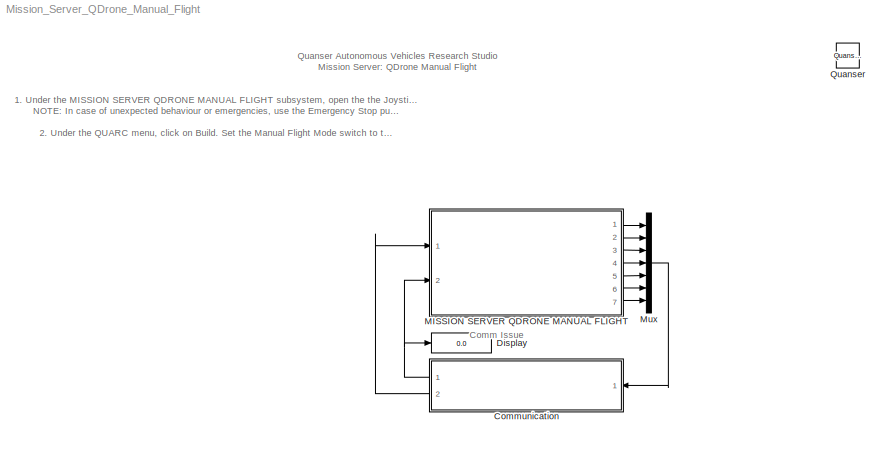
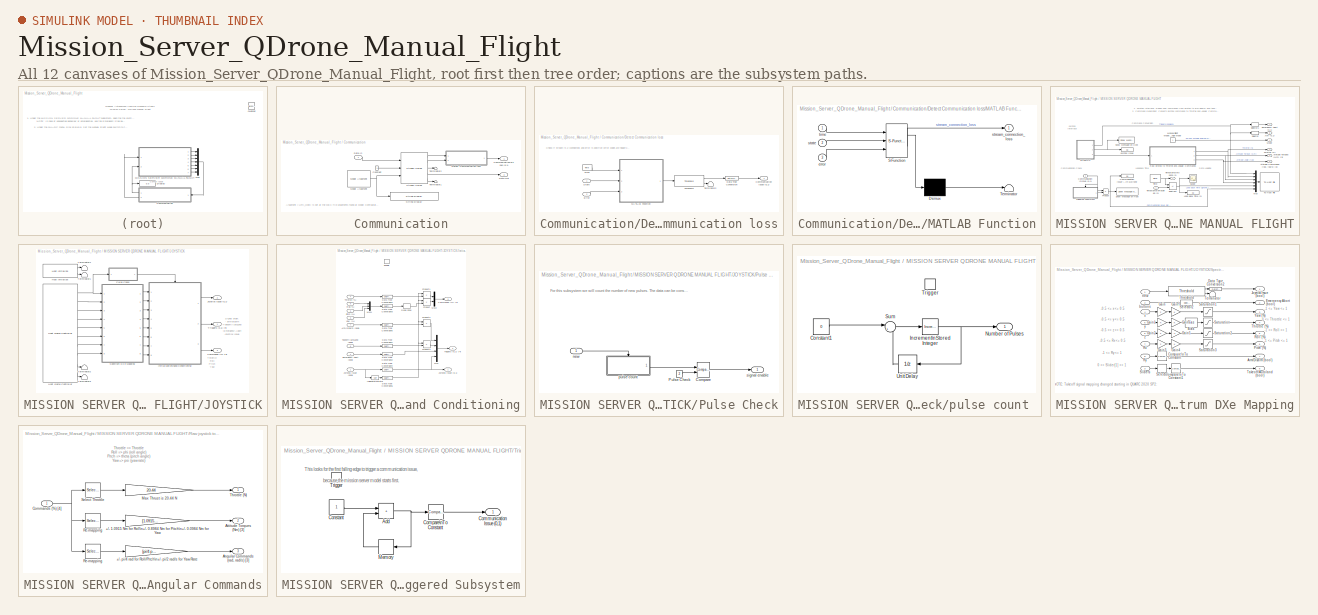
[diagram: thumbnail index - all 12 canvases of the model, root first then tree order]
MODEL Mission_Server_QDrone_Manual_Flight
KIND model
BLOCK [SubSystem] Communication
  Ports = [1, 2]
  RequestExecContextInheritance = off
  SID = 3974
BLOCK [Outport] Communication/Communication\nIssue (0,1)
  SID = 4276
  VectorParamsAs1DForOutWhenUnconnected = off
BLOCK [Constant] Communication/Constant
  SID = 3844
BLOCK [Inport] Communication/Data In
  SID = 3975
BLOCK [Outport] Communication/Data Out
  Port = 2
  SID = 3978
  VectorParamsAs1DForOutWhenUnconnected = off
BLOCK [SubSystem] Communication/Detect Communication loss
  Ports = [2, 1]
  RequestExecContextInheritance = off
  SID = 3979
BLOCK [Outport] Communication/Detect Communication loss/Communication Issue (0,1)
  SID = 3987
  VectorParamsAs1DForOutWhenUnconnected = off
BLOCK [DataTypeConversion] Communication/Detect Communication loss/Data Type Conversion
  RndMeth = Floor
  SID = 3982
  SaturateOnIntegerOverflow = off
BLOCK [Inport] Communication/Detect Communication loss/Error
  NameLocation = top
  Port = 2
  SID = 3981
BLOCK [SubSystem] Communication/Detect Communication loss/MATLAB Function
  ErrorFcn = Stateflow.Translate.translate
  PermitHierarchicalResolution = ExplicitOnly
  Ports = [3, 1]
  RequestExecContextInheritance = off
  SFBlockType = MATLAB Function
  SID = 3983
  TreatAsAtomicUnit = on
BLOCK [Demux] Communication/Detect Communication loss/MATLAB Function/ Demux 
  Outputs = 1
  Ports = [1, 1]
  SID = 3983::62
BLOCK [S-Function] Communication/Detect Communication loss/MATLAB Function/ SFunction 
  EnableBusSupport = off
  FunctionName = sf_sfun
  PortCounts = [3 2]
  Ports = [3, 2]
  SFcnIsStateOwnerBlock = off
  SFunctionDeploymentMode = off
  SID = 3983::61
  Tag = Stateflow S-Function 3
BLOCK [Terminator] Communication/Detect Communication loss/MATLAB Function/ Terminator 
  SID = 3983::63
BLOCK [Inport] Communication/Detect Communication loss/MATLAB Function/error
  Port = 3
  SID = 3983::23
BLOCK [Inport] Communication/Detect Communication loss/MATLAB Function/state
  Port = 2
  SID = 3983::22
BLOCK [Outport] Communication/Detect Communication loss/MATLAB Function/stream_connection_loss
  SID = 3983::5
  VectorParamsAs1DForOutWhenUnconnected = off
BLOCK [Inport] Communication/Detect Communication loss/MATLAB Function/time
  SID = 3983::1
BLOCK [Inport] Communication/Detect Communication loss/State
  NameLocation = top
  SID = 3980
BLOCK [Terminator] Communication/Detect Communication loss/Terminator2
  SID = 3984
BLOCK [Reference] Communication/Detect Communication loss/Threshold  REF=quarc_library/Discontinuities/Threshold
  Ports = [1, 2]
  SID = 3985
  SourceBlock = quarc_library/Discontinuities/Threshold
  SourceProductName = QUARC Targets
  SourceType = Threshold
  duration = 0.1
  operator = >=
  param_src = Specify via dialog
  threshold = 0.5
BLOCK [Reference] Communication/Detect Communication loss/Time  REF=quarc_library/Sources/Time/Time
  MultiThreadCoSim = auto
  NameLocation = top
  Ports = [0, 1]
  SID = 3986
  SourceBlock = quarc_library/Sources/Time/Time
  SourceProductName = QUARC Targets
  SourceType = Time
  sample_time = qc_get_step_size
  time_source = Wall clock
BLOCK [Reference] Communication/Model Argument  REF=quarc_library/Sources/Signals/Model Argument
  AttributesFormatString = (-%<argument_name>)
  MultiThreadCoSim = auto
  Ports = [0, 1]
  SID = 3845
  SourceBlock = quarc_library/Sources/Signals/Model Argument
  SourceProductName = QUARC Targets
  SourceType = Model Argument
  argument_name = URI_Host
  data_type = char
  data_type_mode = Specify via dialog
  default_string = tcpip://localhost:18001
  default_value = 0
  has_value = on
  max_length = 80
  variable_size = off
BLOCK [Reference] Communication/Stream Server  REF=quarc_library/Communications/Basic/Stream Server
  MultiThreadCoSim = auto
  Ports = [3, 5]
  SID = 3861
  SourceBlock = quarc_library/Communications/Basic/Stream Server
  SourceProductName = QUARC Targets
  SourceType = Stream Server
  active = off
  apply_uri_to_all_configs = off
  byte_order = little endian (Intel - LSB first)
  data_type = Inherited via back propagation
  default_value = zeros(1,2)
  implementation = Use blocking I/O in a separate thread
  max_dimensions = -1
  optimization = Minimum latency
  receive_buffer_size = 1460
  receive_dimensions = off
  receive_fifo_size = 1000
  receive_options = Receive most recent data
  receive_priority = 0
  sample_time = qc_get_step_size
  send_buffer_size = 1460
  send_dimensions = off
  send_fifo_size = 1000
  send_options = Send most recent data
  send_priority = 0
  type_expr = BusObject
  uri = tcpip://localhost:18877
  uri_source = External input port
BLOCK [Reference] Communication/String Display   REF=quarc_library/Strings/String Display
  MultiThreadCoSim = auto
  Ports = [1]
  SID = 3862
  SourceBlock = quarc_library/Strings/String Display
  SourceProductName = QUARC Targets
  SourceType = String Display
  alignment = center
  display_mode = Single line
  sample_time = -1
  use_new = off
BLOCK [Terminator] Communication/Terminator1
  SID = 3863
BLOCK [Terminator] Communication/Terminator2
  SID = 3864
BLOCK [Display] Display
  Decimation = 1
  Ports = [1]
  SID = 4419
BLOCK [SubSystem] MISSION SERVER QDRONE MANUAL FLIGHT
  Ports = [2, 7]
  RequestExecContextInheritance = off
  SID = 4279
BLOCK [Outport] MISSION SERVER QDRONE MANUAL FLIGHT/Arm (0,1)
  NameLocation = top
  Port = 6
  SID = 4405
  VectorParamsAs1DForOutWhenUnconnected = off
BLOCK [Outport] MISSION SERVER QDRONE MANUAL FLIGHT/Attitude Commands (rad, rad//s) [3]
  NameLocation = top
  Port = 5
  SID = 4404
  VectorParamsAs1DForOutWhenUnconnected = off
BLOCK [Outport] MISSION SERVER QDRONE MANUAL FLIGHT/Attitude Torques (Nm) [3]
  NameLocation = top
  Port = 4
  SID = 4440
  VectorParamsAs1DForOutWhenUnconnected = off
BLOCK [Display] MISSION SERVER QDRONE MANUAL FLIGHT/Communication Issue \nwith QDrone
  Decimation = 1
  Ports = [1]
  SID = 4282
BLOCK [Inport] MISSION SERVER QDRONE MANUAL FLIGHT/Communication \nIssue (0,1)
  Port = 2
  SID = 4281
BLOCK [Outport] MISSION SERVER QDRONE MANUAL FLIGHT/Emergency Abort (0,1)
  NameLocation = top
  Port = 2
  SID = 4402
  VectorParamsAs1DForOutWhenUnconnected = off
BLOCK [SubSystem] MISSION SERVER QDRONE MANUAL FLIGHT/JOYSTICK
  Ports = [0, 3]
  RequestExecContextInheritance = off
  SID = 4650
BLOCK [Outport] MISSION SERVER QDRONE MANUAL FLIGHT/JOYSTICK/Commands (%) [4]
  Port = 3
  SID = 4748
  VectorParamsAs1DForOutWhenUnconnected = off
BLOCK [Reference] MISSION SERVER QDRONE MANUAL FLIGHT/JOYSTICK/Host Game Controller  REF=quarc_library/Devices/Peripherals/Host/Host Game Controller
  MultiThreadCoSim = auto
  Ports = [0, 10]
  SID = 4651
  SourceBlock = quarc_library/Devices/Peripherals/Host/Host Game Controller
  SourceProductName = QUARC Targets
  SourceType = Host Game Controller
  auto_center = off
  buffer_size = 20
  controller = 1
  deadzone = []
  debug_mode = off
  enabled = on
  object_name = Host-1
  sample_time = qc_get_step_size
  saturation = []
BLOCK [Reference] MISSION SERVER QDRONE MANUAL FLIGHT/JOYSTICK/Host Initialize  REF=quarc_library/Devices/Peripherals/Host/Host Initialize
  MultiThreadCoSim = auto
  Ports = [0, 2]
  SID = 4652
  SourceBlock = quarc_library/Devices/Peripherals/Host/Host Initialize
  SourceProductName = QUARC Targets
  SourceType = Host Initialize
  active = on
  apply_uri_to_all_configs = on
  object_name = Host-1
  receive_buffer_size = 1000
  run_client = on
  sample_time = qc_get_step_size
  send_buffer_size = 1000
  thread_priority = 0
  uri = tcpip://localhost:18001
  uri_source = Use external mode communications
  use_window = off
  window_position = []
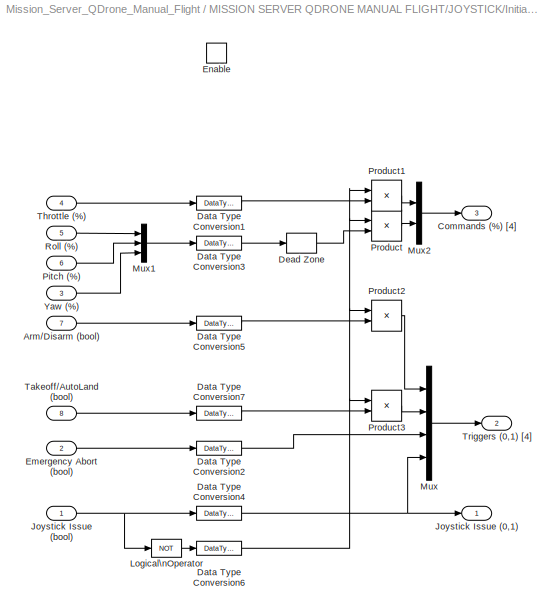
BLOCK [SubSystem] MISSION SERVER QDRONE MANUAL FLIGHT/JOYSTICK/Initialization\nand Conditioning
  Ports = [8, 3, 1]
  RequestExecContextInheritance = off
  SID = 4653
  TreatAsAtomicUnit = on
BLOCK [Inport] MISSION SERVER QDRONE MANUAL FLIGHT/JOYSTICK/Initialization\nand Conditioning/Arm//Disarm (bool)
  Port = 7
  SID = 4660
BLOCK [Outport] MISSION SERVER QDRONE MANUAL FLIGHT/JOYSTICK/Initialization\nand Conditioning/Commands (%) [4]
  InitialOutput = 0
  NameLocation = top
  Port = 3
  SID = 4681
  VectorParamsAs1DForOutWhenUnconnected = off
BLOCK [DataTypeConversion] MISSION SERVER QDRONE MANUAL FLIGHT/JOYSTICK/Initialization\nand Conditioning/Data Type Conversion1
  RndMeth = Floor
  SID = 4663
  SaturateOnIntegerOverflow = off
BLOCK [DataTypeConversion] MISSION SERVER QDRONE MANUAL FLIGHT/JOYSTICK/Initialization\nand Conditioning/Data Type Conversion2
  RndMeth = Floor
  SID = 4664
  SaturateOnIntegerOverflow = off
BLOCK [DataTypeConversion] MISSION SERVER QDRONE MANUAL FLIGHT/JOYSTICK/Initialization\nand Conditioning/Data Type Conversion3
  RndMeth = Floor
  SID = 4665
  SaturateOnIntegerOverflow = off
BLOCK [DataTypeConversion] MISSION SERVER QDRONE MANUAL FLIGHT/JOYSTICK/Initialization\nand Conditioning/Data Type Conversion4
  RndMeth = Floor
  SID = 4666
  SaturateOnIntegerOverflow = off
BLOCK [DataTypeConversion] MISSION SERVER QDRONE MANUAL FLIGHT/JOYSTICK/Initialization\nand Conditioning/Data Type Conversion5
  RndMeth = Floor
  SID = 4667
  SaturateOnIntegerOverflow = off
BLOCK [DataTypeConversion] MISSION SERVER QDRONE MANUAL FLIGHT/JOYSTICK/Initialization\nand Conditioning/Data Type Conversion6
  RndMeth = Floor
  SID = 4668
  SaturateOnIntegerOverflow = off
BLOCK [DataTypeConversion] MISSION SERVER QDRONE MANUAL FLIGHT/JOYSTICK/Initialization\nand Conditioning/Data Type Conversion7
  RndMeth = Floor
  SID = 4669
  SaturateOnIntegerOverflow = off
BLOCK [DeadZone] MISSION SERVER QDRONE MANUAL FLIGHT/JOYSTICK/Initialization\nand Conditioning/Dead Zone
  LowerValue = -0.01
  SID = 4670
  UpperValue = 0.01
BLOCK [Inport] MISSION SERVER QDRONE MANUAL FLIGHT/JOYSTICK/Initialization\nand Conditioning/Emergency Abort (bool)
  Port = 2
  SID = 4655
BLOCK [EnablePort] MISSION SERVER QDRONE MANUAL FLIGHT/JOYSTICK/Initialization\nand Conditioning/Enable
  Ports = []
  SID = 4662
  StatesWhenEnabling = reset
BLOCK [Outport] MISSION SERVER QDRONE MANUAL FLIGHT/JOYSTICK/Initialization\nand Conditioning/Joystick Issue (0,1)
  InitialOutput = 0
  NameLocation = top
  SID = 4679
  VectorParamsAs1DForOutWhenUnconnected = off
BLOCK [Inport] MISSION SERVER QDRONE MANUAL FLIGHT/JOYSTICK/Initialization\nand Conditioning/Joystick Issue (bool)
  SID = 4654
BLOCK [Logic] MISSION SERVER QDRONE MANUAL FLIGHT/JOYSTICK/Initialization\nand Conditioning/Logical\nOperator
  AllPortsSameDT = off
  Operator = NOT
  OutDataTypeStr = boolean
  Ports = [1, 1]
  SID = 4671
BLOCK [Mux] MISSION SERVER QDRONE MANUAL FLIGHT/JOYSTICK/Initialization\nand Conditioning/Mux
  DisplayOption = bar
  Ports = [4, 1]
  SID = 4672
BLOCK [Mux] MISSION SERVER QDRONE MANUAL FLIGHT/JOYSTICK/Initialization\nand Conditioning/Mux1
  DisplayOption = bar
  Inputs = 3
  Ports = [3, 1]
  SID = 4673
BLOCK [Mux] MISSION SERVER QDRONE MANUAL FLIGHT/JOYSTICK/Initialization\nand Conditioning/Mux2
  DisplayOption = bar
  Inputs = 2
  Ports = [2, 1]
  SID = 4674
BLOCK [Inport] MISSION SERVER QDRONE MANUAL FLIGHT/JOYSTICK/Initialization\nand Conditioning/Pitch (%)
  Port = 6
  SID = 4659
BLOCK [Product] MISSION SERVER QDRONE MANUAL FLIGHT/JOYSTICK/Initialization\nand Conditioning/Product
  Ports = [2, 1]
  SID = 4675
BLOCK [Product] MISSION SERVER QDRONE MANUAL FLIGHT/JOYSTICK/Initialization\nand Conditioning/Product1
  Ports = [2, 1]
  SID = 4676
BLOCK [Product] MISSION SERVER QDRONE MANUAL FLIGHT/JOYSTICK/Initialization\nand Conditioning/Product2
  Ports = [2, 1]
  SID = 4677
BLOCK [Product] MISSION SERVER QDRONE MANUAL FLIGHT/JOYSTICK/Initialization\nand Conditioning/Product3
  Ports = [2, 1]
  SID = 4678
BLOCK [Inport] MISSION SERVER QDRONE MANUAL FLIGHT/JOYSTICK/Initialization\nand Conditioning/Roll (%)
  Port = 5
  SID = 4658
BLOCK [Inport] MISSION SERVER QDRONE MANUAL FLIGHT/JOYSTICK/Initialization\nand Conditioning/Takeoff//AutoLand (bool)
  Port = 8
  SID = 4661
BLOCK [Inport] MISSION SERVER QDRONE MANUAL FLIGHT/JOYSTICK/Initialization\nand Conditioning/Throttle (%)
  Port = 4
  SID = 4657
BLOCK [Outport] MISSION SERVER QDRONE MANUAL FLIGHT/JOYSTICK/Initialization\nand Conditioning/Triggers (0,1) [4]
  InitialOutput = 0
  NameLocation = top
  Port = 2
  SID = 4680
  VectorParamsAs1DForOutWhenUnconnected = off
BLOCK [Inport] MISSION SERVER QDRONE MANUAL FLIGHT/JOYSTICK/Initialization\nand Conditioning/Yaw (%)
  Port = 3
  SID = 4656
BLOCK [Outport] MISSION SERVER QDRONE MANUAL FLIGHT/JOYSTICK/Joystick Issue (0,1)
  Port = 2
  SID = 4747
  VectorParamsAs1DForOutWhenUnconnected = off
BLOCK [SubSystem] MISSION SERVER QDRONE MANUAL FLIGHT/JOYSTICK/Pulse Check
  Ports = [1, 1]
  RequestExecContextInheritance = off
  SID = 4682
  TreatAsAtomicUnit = on
BLOCK [Reference] MISSION SERVER QDRONE MANUAL FLIGHT/JOYSTICK/Pulse Check/Compare  REF=quarc_library/Logic Operations/Compare
  MultiThreadCoSim = auto
  Ports = [2, 1]
  SID = 4684
  SourceBlock = quarc_library/Logic Operations/Compare
  SourceProductName = QUARC Targets
  SourceType = Compare
  operator = >
  output_data_type = boolean
BLOCK [Constant] MISSION SERVER QDRONE MANUAL FLIGHT/JOYSTICK/Pulse Check/Pulse Check
  SID = 4685
  Value = 2
BLOCK [Inport] MISSION SERVER QDRONE MANUAL FLIGHT/JOYSTICK/Pulse Check/new
  SID = 4683
BLOCK [SubSystem] MISSION SERVER QDRONE MANUAL FLIGHT/JOYSTICK/Pulse Check/pulse count 
  Ports = [0, 1, 0, 1]
  RequestExecContextInheritance = off
  SID = 4686
  TreatAsAtomicUnit = on
BLOCK [Constant] MISSION SERVER QDRONE MANUAL FLIGHT/JOYSTICK/Pulse Check/pulse count /Constant1
  SID = 4688
  Value = 0
BLOCK [Reference] MISSION SERVER QDRONE MANUAL FLIGHT/JOYSTICK/Pulse Check/pulse count /Increment\nStored Integer  REF=simulink/Additional Math\n& Discrete/Additional Math:\nIncrement - Decrement/Increment\nStored Integer
  Ports = [1, 1]
  SID = 4689
  SourceBlock = simulink/Additional Math\n& Discrete/Additional Math:\nIncrement - Decrement/Increment\nStored Integer
  SourceProductBaseCode = SL
  SourceType = Stored Integer Value Increment
BLOCK [Outport] MISSION SERVER QDRONE MANUAL FLIGHT/JOYSTICK/Pulse Check/pulse count /Number of Pulses
  SID = 4692
  VectorParamsAs1DForOutWhenUnconnected = off
BLOCK [Sum] MISSION SERVER QDRONE MANUAL FLIGHT/JOYSTICK/Pulse Check/pulse count /Sum
  Inputs = |++
  Ports = [2, 1]
  SID = 4690
BLOCK [TriggerPort] MISSION SERVER QDRONE MANUAL FLIGHT/JOYSTICK/Pulse Check/pulse count /Trigger
  Ports = []
  SID = 4687
  StatesWhenEnabling = held
  VariantControl = Variant
BLOCK [UnitDelay] MISSION SERVER QDRONE MANUAL FLIGHT/JOYSTICK/Pulse Check/pulse count /Unit Delay
  HasFrameUpgradeWarning = on
  NameLocation = top
  SID = 4691
  SampleTime = -1
BLOCK [Outport] MISSION SERVER QDRONE MANUAL FLIGHT/JOYSTICK/Pulse Check/signal enable
  InitialOutput = 0
  SID = 4693
  VectorParamsAs1DForOutWhenUnconnected = off
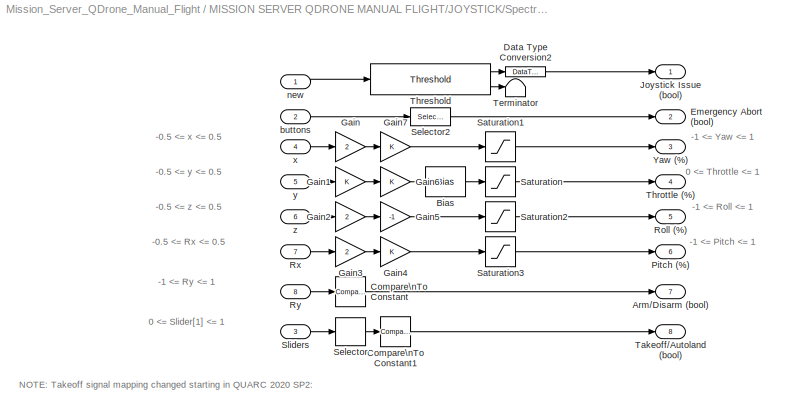
BLOCK [SubSystem] MISSION SERVER QDRONE MANUAL FLIGHT/JOYSTICK/Spectrum DXe Mapping
  Ports = [8, 8]
  RequestExecContextInheritance = off
  SID = 4752
BLOCK [Outport] MISSION SERVER QDRONE MANUAL FLIGHT/JOYSTICK/Spectrum DXe Mapping/Arm//Disarm (bool) 
  Port = 7
  SID = 4787
  VectorParamsAs1DForOutWhenUnconnected = off
BLOCK [Bias] MISSION SERVER QDRONE MANUAL FLIGHT/JOYSTICK/Spectrum DXe Mapping/Bias
  Bias = 0.5
  SID = 4761
  SaturateOnIntegerOverflow = off
BLOCK [Reference] MISSION SERVER QDRONE MANUAL FLIGHT/JOYSTICK/Spectrum DXe Mapping/Compare\nTo Constant  REF=simulink/Logic and Bit\nOperations/Compare\nTo Constant
  OutDataTypeStr = boolean
  Ports = [1, 1]
  SID = 4762
  SourceBlock = simulink/Logic and Bit\nOperations/Compare\nTo Constant
  SourceProductBaseCode = SL
  SourceType = Compare To Constant
  ZeroCross = on
  const = 0
  relop = <=
BLOCK [Reference] MISSION SERVER QDRONE MANUAL FLIGHT/JOYSTICK/Spectrum DXe Mapping/Compare\nTo Constant1  REF=simulink/Logic and Bit\nOperations/Compare\nTo Constant
  OutDataTypeStr = boolean
  Ports = [1, 1]
  SID = 4763
  SourceBlock = simulink/Logic and Bit\nOperations/Compare\nTo Constant
  SourceProductBaseCode = SL
  SourceType = Compare To Constant
  ZeroCross = on
  const = 0.5
  relop = <=
BLOCK [DataTypeConversion] MISSION SERVER QDRONE MANUAL FLIGHT/JOYSTICK/Spectrum DXe Mapping/Data Type Conversion2
  RndMeth = Floor
  SID = 4764
  SaturateOnIntegerOverflow = off
BLOCK [Outport] MISSION SERVER QDRONE MANUAL FLIGHT/JOYSTICK/Spectrum DXe Mapping/Emergency Abort (bool)
  Port = 2
  SID = 4782
  VectorParamsAs1DForOutWhenUnconnected = off
BLOCK [Gain] MISSION SERVER QDRONE MANUAL FLIGHT/JOYSTICK/Spectrum DXe Mapping/Gain
  Gain = 2
  SID = 4765
BLOCK [Gain] MISSION SERVER QDRONE MANUAL FLIGHT/JOYSTICK/Spectrum DXe Mapping/Gain1
  SID = 4766
BLOCK [Gain] MISSION SERVER QDRONE MANUAL FLIGHT/JOYSTICK/Spectrum DXe Mapping/Gain2
  Gain = 2
  SID = 4767
BLOCK [Gain] MISSION SERVER QDRONE MANUAL FLIGHT/JOYSTICK/Spectrum DXe Mapping/Gain3
  Gain = 2
  SID = 4768
BLOCK [Gain] MISSION SERVER QDRONE MANUAL FLIGHT/JOYSTICK/Spectrum DXe Mapping/Gain4
  SID = 4769
BLOCK [Gain] MISSION SERVER QDRONE MANUAL FLIGHT/JOYSTICK/Spectrum DXe Mapping/Gain5
  Gain = -1
  SID = 4770
BLOCK [Gain] MISSION SERVER QDRONE MANUAL FLIGHT/JOYSTICK/Spectrum DXe Mapping/Gain6
  SID = 4771
BLOCK [Gain] MISSION SERVER QDRONE MANUAL FLIGHT/JOYSTICK/Spectrum DXe Mapping/Gain7
  SID = 4772
BLOCK [Outport] MISSION SERVER QDRONE MANUAL FLIGHT/JOYSTICK/Spectrum DXe Mapping/Joystick Issue (bool)
  SID = 4781
  VectorParamsAs1DForOutWhenUnconnected = off
BLOCK [Outport] MISSION SERVER QDRONE MANUAL FLIGHT/JOYSTICK/Spectrum DXe Mapping/Pitch (%)
  Port = 6
  SID = 4786
  VectorParamsAs1DForOutWhenUnconnected = off
BLOCK [Outport] MISSION SERVER QDRONE MANUAL FLIGHT/JOYSTICK/Spectrum DXe Mapping/Roll (%)
  Port = 5
  SID = 4785
  VectorParamsAs1DForOutWhenUnconnected = off
BLOCK [Inport] MISSION SERVER QDRONE MANUAL FLIGHT/JOYSTICK/Spectrum DXe Mapping/Rx
  Port = 7
  SID = 4759
BLOCK [Inport] MISSION SERVER QDRONE MANUAL FLIGHT/JOYSTICK/Spectrum DXe Mapping/Ry
  Port = 8
  SID = 4760
BLOCK [Saturate] MISSION SERVER QDRONE MANUAL FLIGHT/JOYSTICK/Spectrum DXe Mapping/Saturation
  LowerLimit = 0
  SID = 4773
  UpperLimit = 1
BLOCK [Saturate] MISSION SERVER QDRONE MANUAL FLIGHT/JOYSTICK/Spectrum DXe Mapping/Saturation1
  LowerLimit = -1
  SID = 4774
  UpperLimit = 1
BLOCK [Saturate] MISSION SERVER QDRONE MANUAL FLIGHT/JOYSTICK/Spectrum DXe Mapping/Saturation2
  LowerLimit = -1
  SID = 4775
  UpperLimit = 1
BLOCK [Saturate] MISSION SERVER QDRONE MANUAL FLIGHT/JOYSTICK/Spectrum DXe Mapping/Saturation3
  LowerLimit = -1
  SID = 4776
  UpperLimit = 1
BLOCK [Selector] MISSION SERVER QDRONE MANUAL FLIGHT/JOYSTICK/Spectrum DXe Mapping/Selector
  IndexOptions = Index vector (dialog)
  Indices = [2]
  InputPortWidth = 2
  OutputSizes = 1
  Ports = [1, 1]
  SID = 4777
BLOCK [Selector] MISSION SERVER QDRONE MANUAL FLIGHT/JOYSTICK/Spectrum DXe Mapping/Selector2
  IndexOptions = Index vector (dialog)
  Indices = [1]
  InputPortWidth = 32
  NameLocation = top
  OutputSizes = 1
  Ports = [1, 1]
  SID = 4778
BLOCK [Inport] MISSION SERVER QDRONE MANUAL FLIGHT/JOYSTICK/Spectrum DXe Mapping/Sliders
  Port = 3
  SID = 4755
BLOCK [Outport] MISSION SERVER QDRONE MANUAL FLIGHT/JOYSTICK/Spectrum DXe Mapping/Takeoff//Autoland (bool)
  Port = 8
  SID = 4788
  VectorParamsAs1DForOutWhenUnconnected = off
BLOCK [Terminator] MISSION SERVER QDRONE MANUAL FLIGHT/JOYSTICK/Spectrum DXe Mapping/Terminator
  SID = 4779
BLOCK [Reference] MISSION SERVER QDRONE MANUAL FLIGHT/JOYSTICK/Spectrum DXe Mapping/Threshold  REF=quarc_library/Discontinuities/Threshold
  Ports = [1, 2]
  SID = 4780
  SourceBlock = quarc_library/Discontinuities/Threshold
  SourceProductName = QUARC Targets
  SourceType = Threshold
  duration = 1
  operator = ==
  param_src = Specify via dialog
  threshold = 0
BLOCK [Outport] MISSION SERVER QDRONE MANUAL FLIGHT/JOYSTICK/Spectrum DXe Mapping/Throttle (%)
  Port = 4
  SID = 4784
  VectorParamsAs1DForOutWhenUnconnected = off
BLOCK [Outport] MISSION SERVER QDRONE MANUAL FLIGHT/JOYSTICK/Spectrum DXe Mapping/Yaw (%)
  Port = 3
  SID = 4783
  VectorParamsAs1DForOutWhenUnconnected = off
BLOCK [Inport] MISSION SERVER QDRONE MANUAL FLIGHT/JOYSTICK/Spectrum DXe Mapping/buttons
  Port = 2
  SID = 4754
BLOCK [Inport] MISSION SERVER QDRONE MANUAL FLIGHT/JOYSTICK/Spectrum DXe Mapping/new
  SID = 4753
BLOCK [Inport] MISSION SERVER QDRONE MANUAL FLIGHT/JOYSTICK/Spectrum DXe Mapping/x
  Port = 4
  SID = 4756
BLOCK [Inport] MISSION SERVER QDRONE MANUAL FLIGHT/JOYSTICK/Spectrum DXe Mapping/y
  Port = 5
  SID = 4757
BLOCK [Inport] MISSION SERVER QDRONE MANUAL FLIGHT/JOYSTICK/Spectrum DXe Mapping/z
  Port = 6
  SID = 4758
BLOCK [Terminator] MISSION SERVER QDRONE MANUAL FLIGHT/JOYSTICK/Terminator1
  SID = 4742
BLOCK [Terminator] MISSION SERVER QDRONE MANUAL FLIGHT/JOYSTICK/Terminator2
  SID = 4743
BLOCK [Terminator] MISSION SERVER QDRONE MANUAL FLIGHT/JOYSTICK/Terminator3
  SID = 4744
BLOCK [Terminator] MISSION SERVER QDRONE MANUAL FLIGHT/JOYSTICK/Terminator4
  SID = 4745
BLOCK [Outport] MISSION SERVER QDRONE MANUAL FLIGHT/JOYSTICK/Triggers (0,1) [4]
  SID = 4746
  VectorParamsAs1DForOutWhenUnconnected = off
BLOCK [Display] MISSION SERVER QDRONE MANUAL FLIGHT/Joystick Issue
  Decimation = 1
  Ports = [1]
  SID = 4373
BLOCK [Display] MISSION SERVER QDRONE MANUAL FLIGHT/Loop Back Time (s)
  Decimation = 1
  Ports = [1]
  SID = 4374
BLOCK [Constant] MISSION SERVER QDRONE MANUAL FLIGHT/Manual Flight Mode\n1 - Torque Mode,   0 - Angle Mode
  NameLocation = top
  SID = 4436
BLOCK [Outport] MISSION SERVER QDRONE MANUAL FLIGHT/Mode
  NameLocation = top
  SID = 4441
  VectorParamsAs1DForOutWhenUnconnected = off
BLOCK [Mux] MISSION SERVER QDRONE MANUAL FLIGHT/Mux
  DisplayOption = bar
  Inputs = 6
  Ports = [6, 1]
  SID = 4375
BLOCK [Product] MISSION SERVER QDRONE MANUAL FLIGHT/Product
  Ports = [2, 1]
  SID = 4376
BLOCK [SubSystem] MISSION SERVER QDRONE MANUAL FLIGHT/Raw joystick to Throttle and Angular Commands
  NameLocation = top
  Ports = [1, 3]
  RequestExecContextInheritance = off
  SID = 4377
BLOCK [Selector] MISSION SERVER QDRONE MANUAL FLIGHT/Raw joystick to Throttle and Angular Commands/ Re-mapping 
  IndexOptions = Index vector (dialog)
  Indices = [2 3 4]
  InputPortWidth = 4
  OutputSizes = 1
  Ports = [1, 1]
  SID = 4438
BLOCK [Gain] MISSION SERVER QDRONE MANUAL FLIGHT/Raw joystick to Throttle and Angular Commands/+//- 1.0915 Nm for Roll\n+//- 0.8984 Nm for Pitch\n+//- 0.0984 Nm for Yaw
  Gain = [1.0915 0.8984 0.0984]
  SID = 4437
BLOCK [Gain] MISSION SERVER QDRONE MANUAL FLIGHT/Raw joystick to Throttle and Angular Commands/+//- pi//4 rad for Roll//Pitch\n+//- pi//2 rad//s for Yaw Rate
  Gain = [pi/4 pi/4 pi/2]
  SID = 4379
BLOCK [Outport] MISSION SERVER QDRONE MANUAL FLIGHT/Raw joystick to Throttle and Angular Commands/Angular Commands (rad, rad//s) [3]
  Port = 3
  SID = 4384
  VectorParamsAs1DForOutWhenUnconnected = off
BLOCK [Outport] MISSION SERVER QDRONE MANUAL FLIGHT/Raw joystick to Throttle and Angular Commands/Attitude Torques (Nm) [3]
  Port = 2
  SID = 4439
  VectorParamsAs1DForOutWhenUnconnected = off
BLOCK [Inport] MISSION SERVER QDRONE MANUAL FLIGHT/Raw joystick to Throttle and Angular Commands/Commands (%) [4]
  SID = 4378
BLOCK [Gain] MISSION SERVER QDRONE MANUAL FLIGHT/Raw joystick to Throttle and Angular Commands/Max Thrust is 20.44 N
  Gain = 20.44
  SID = 4380
BLOCK [Selector] MISSION SERVER QDRONE MANUAL FLIGHT/Raw joystick to Throttle and Angular Commands/Re-mapping
  IndexOptions = Index vector (dialog)
  Indices = [2 3 4]
  InputPortWidth = 4
  OutputSizes = 1
  Ports = [1, 1]
  SID = 4381
BLOCK [Selector] MISSION SERVER QDRONE MANUAL FLIGHT/Raw joystick to Throttle and Angular Commands/Select Throttle
  IndexOptions = Index vector (dialog)
  Indices = [1]
  InputPortWidth = 4
  OutputSizes = 1
  Ports = [1, 1]
  SID = 4382
BLOCK [Outport] MISSION SERVER QDRONE MANUAL FLIGHT/Raw joystick to Throttle and Angular Commands/Throttle (N)
  SID = 4383
  VectorParamsAs1DForOutWhenUnconnected = off
BLOCK [Scope] MISSION SERVER QDRONE MANUAL FLIGHT/Scope
  Floating = off
  NumInputPorts = 1
  Ports = [1]
  SID = 4386
  ScopeSpecificationString = Simulink.scopes.TimeScopeBlockCfg('CurrentConfiguration', extmgr.ConfigurationSet(extmgr.Configuration('Core','General UI',true),extmgr.Configuration('Core','Source UI',true),extmgr.Configuration('Sources','WiredSimulink',true),extmgr.Configuration('Visuals','Time Domain',true),extmgr.Configuration('Tools','Plot Navigation',true),extmgr.Configuration('Tools','Measurements',true)),'Version','2021a'...<+1ch>
BLOCK [Selector] MISSION SERVER QDRONE MANUAL FLIGHT/Selector
  IndexOptions = Index vector (dialog)
  Indices = [1]
  InputPortWidth = 4
  OutputSizes = 1
  Ports = [1, 1]
  SID = 4387
BLOCK [Selector] MISSION SERVER QDRONE MANUAL FLIGHT/Selector1
  IndexOptions = Index vector (dialog)
  Indices = [3]
  InputPortWidth = 4
  OutputSizes = 1
  Ports = [1, 1]
  SID = 4388
BLOCK [Reference] MISSION SERVER QDRONE MANUAL FLIGHT/Show Message on Host  REF=quarc_library/Sinks/Error Handling/Show Message on Host
  AttributesFormatString = \"%<message>\"
  MultiThreadCoSim = auto
  Ports = [1]
  SID = 4389
  SourceBlock = quarc_library/Sinks/Error Handling/Show Message on Host
  SourceProductName = QUARC Targets
  SourceType = Host Show Message
  message = Mission Server: Communication Issue with QDrone
  message_icon = Warning
  message_type = Fixed error message
BLOCK [Reference] MISSION SERVER QDRONE MANUAL FLIGHT/Show Message on Host   REF=quarc_library/Sinks/Error Handling/Show Message on Host
  AttributesFormatString = \"%<message>\"
  MultiThreadCoSim = auto
  NameLocation = top
  Ports = [1]
  SID = 4390
  SourceBlock = quarc_library/Sinks/Error Handling/Show Message on Host
  SourceProductName = QUARC Targets
  SourceType = Host Show Message
  message = Mission Server: Joystick Disconnected
  message_icon = Warning
  message_type = Fixed error message
BLOCK [Sum] MISSION SERVER QDRONE MANUAL FLIGHT/Subtract
  IconShape = rectangular
  Inputs = +-
  Ports = [2, 1]
  SID = 4391
BLOCK [Outport] MISSION SERVER QDRONE MANUAL FLIGHT/Throttle (N)
  NameLocation = top
  Port = 3
  SID = 4403
  VectorParamsAs1DForOutWhenUnconnected = off
BLOCK [Reference] MISSION SERVER QDRONE MANUAL FLIGHT/Time  REF=quarc_library/Sources/Time/Time
  MultiThreadCoSim = auto
  Ports = [0, 1]
  SID = 4392
  SourceBlock = quarc_library/Sources/Time/Time
  SourceProductName = QUARC Targets
  SourceType = Time
  sample_time = qc_get_step_size
  time_source = Wall clock
BLOCK [Inport] MISSION SERVER QDRONE MANUAL FLIGHT/Timestamp\nReceived (s)
  SID = 4280
BLOCK [Outport] MISSION SERVER QDRONE MANUAL FLIGHT/Timestamp\nto send (s)
  NameLocation = top
  Port = 7
  SID = 4406
  VectorParamsAs1DForOutWhenUnconnected = off
BLOCK [Reference] MISSION SERVER QDRONE MANUAL FLIGHT/To Host File  REF=quarc_library/Sinks/To Host/To Host File
  AttributesFormatString = %<final_file_name>
  MultiThreadCoSim = auto
  Ports = [1]
  SID = 4393
  SourceBlock = quarc_library/Sinks/To Host/To Host File
  SourceProductName = QUARC Targets
  SourceType = To Host File
  append = off
  bitrate = 2000000
  decimation = 1
  file_format = MAT-file v.5
  file_name = saved_data/%m/Mission_Server_%{char(datetime)}.mat
  final_file_name = saved_data/Mission_Server_QDrone_Manual_Flight/Mission_Server_2022-03-09 17-51-30.mat
  options = No header or footer
  sample_time = -1
  variable_name = mission_server_data
BLOCK [SubSystem] MISSION SERVER QDRONE MANUAL FLIGHT/Triggered Subsystem
  Ports = [0, 1, 0, 1]
  RequestExecContextInheritance = off
  SID = 4394
  TreatAsAtomicUnit = on
BLOCK [Sum] MISSION SERVER QDRONE MANUAL FLIGHT/Triggered Subsystem/Add
  IconShape = rectangular
  Ports = [2, 1]
  SID = 4396
BLOCK [Outport] MISSION SERVER QDRONE MANUAL FLIGHT/Triggered Subsystem/Communication Issue (0,1)
  InitialOutput = 0
  SID = 4400
  VectorParamsAs1DForOutWhenUnconnected = off
BLOCK [Reference] MISSION SERVER QDRONE MANUAL FLIGHT/Triggered Subsystem/Compare\nTo Constant  REF=simulink/Logic and Bit\nOperations/Compare\nTo Constant
  OutDataTypeStr = boolean
  Ports = [1, 1]
  SID = 4397
  SourceBlock = simulink/Logic and Bit\nOperations/Compare\nTo Constant
  SourceProductBaseCode = SL
  SourceType = Compare To Constant
  ZeroCross = on
  const = 1
  relop = >=
BLOCK [Constant] MISSION SERVER QDRONE MANUAL FLIGHT/Triggered Subsystem/Constant
  SID = 4398
BLOCK [Memory] MISSION SERVER QDRONE MANUAL FLIGHT/Triggered Subsystem/Memory
  InheritSampleTime = on
  SID = 4399
BLOCK [TriggerPort] MISSION SERVER QDRONE MANUAL FLIGHT/Triggered Subsystem/Trigger
  Ports = []
  SID = 4395
  StatesWhenEnabling = held
  TriggerType = falling
  VariantControl = Variant
BLOCK [Mux] Mux
  DisplayOption = bar
  Inputs = 7
  Ports = [7, 1]
  SID = 4016
BLOCK [Reference] Quanser  REF=quarc_library/Logos/Quanser
  Ports = []
  RTWMemSecDataConstants = Inherit from model
  RTWMemSecDataInternal = Inherit from model
  RTWMemSecDataParameters = Inherit from model
  RTWMemSecFuncExecute = Inherit from model
  RTWMemSecFuncInitTerm = Inherit from model
  SID = 3945
  SourceBlock = quarc_library/Logos/Quanser
  SourceProductName = QUARC Targets
  SourceType = Powered by Quanser
ANNOTATION (root): \n \n 1. Under the MISSION SERVER QDRONE MANUAL FLIGHT subsystem, open the the Joystick subsystem, and ensure that the Host Game Controller block's Controller Number parameter is set to SPEKTRUM RECEIVER NOTE : In case of unexpected behaviour or emergencies, use the Emergency Stop push button on the Spektrum Joystick to cut all power to the motors (this will result in the drone falling). \n 2. Und...<+719ch>
ANNOTATION (root): \n \n Quanser Autonomous Vehicles Research Studio Mission Server: QDrone Manual Flight
ANNOTATION (root): Comm Issue
ANNOTATION Communication: \n \n Argument (-URI_Host) is set at the MEX-file arguments found at Model Configuration Properties > Code Generation > Interface \n \n Format: \n tcpip://localhost:18001
ANNOTATION Communication/Detect Communication loss: Check if stream is 2 (connected) and error is positive (error codes are negative). Otherwise issue a communication error.
ANNOTATION MISSION SERVER QDRONE MANUAL FLIGHT: 1. Joystick Interface: Reads user commands from joystick to arm/disarm and takeoff/land the drone.\n2. Command Generation: Converts joystick commands to Throttle and Angular Commands
ANNOTATION MISSION SERVER QDRONE MANUAL FLIGHT: Command Conversion
ANNOTATION MISSION SERVER QDRONE MANUAL FLIGHT: Communication Check
ANNOTATION MISSION SERVER QDRONE MANUAL FLIGHT: Data Logging
ANNOTATION MISSION SERVER QDRONE MANUAL FLIGHT: Joystick \nInterface
ANNOTATION MISSION SERVER QDRONE MANUAL FLIGHT: Loopback Time
ANNOTATION MISSION SERVER QDRONE MANUAL FLIGHT/JOYSTICK: Signal order:\n- arm/disarm \n-Takeoff/AutoLand \n-Emergency Abort \n-Joystick Issue
ANNOTATION MISSION SERVER QDRONE MANUAL FLIGHT/JOYSTICK: Throttle\nRoll\nPitch \nYaw
ANNOTATION MISSION SERVER QDRONE MANUAL FLIGHT/JOYSTICK/Pulse Check: \n \n For this subsystem we will count the number of new pulses. The data can be considered enabled once the count of new signals has gone beyond 2. This will enable the Initializing and conditioning subsystem.
ANNOTATION MISSION SERVER QDRONE MANUAL FLIGHT/JOYSTICK/Spectrum DXe Mapping: -0.5 <= Rx <= 0.5
ANNOTATION MISSION SERVER QDRONE MANUAL FLIGHT/JOYSTICK/Spectrum DXe Mapping: -0.5 <= x <= 0.5
ANNOTATION MISSION SERVER QDRONE MANUAL FLIGHT/JOYSTICK/Spectrum DXe Mapping: -0.5 <= y <= 0.5
ANNOTATION MISSION SERVER QDRONE MANUAL FLIGHT/JOYSTICK/Spectrum DXe Mapping: -0.5 <= z <= 0.5
ANNOTATION MISSION SERVER QDRONE MANUAL FLIGHT/JOYSTICK/Spectrum DXe Mapping: -1 <= Pitch <= 1
ANNOTATION MISSION SERVER QDRONE MANUAL FLIGHT/JOYSTICK/Spectrum DXe Mapping: -1 <= Roll <= 1
ANNOTATION MISSION SERVER QDRONE MANUAL FLIGHT/JOYSTICK/Spectrum DXe Mapping: -1 <= Ry <= 1
ANNOTATION MISSION SERVER QDRONE MANUAL FLIGHT/JOYSTICK/Spectrum DXe Mapping: -1 <= Yaw <= 1
ANNOTATION MISSION SERVER QDRONE MANUAL FLIGHT/JOYSTICK/Spectrum DXe Mapping: 0 <= Slider[1] <= 1
ANNOTATION MISSION SERVER QDRONE MANUAL FLIGHT/JOYSTICK/Spectrum DXe Mapping: 0 <= Throttle <= 1
ANNOTATION MISSION SERVER QDRONE MANUAL FLIGHT/JOYSTICK/Spectrum DXe Mapping: \n \n NOTE: Takeoff signal mapping changed starting in QUARC 2020 SP2: \n \n - For QUARC 2020 SP1 and earlier: Takeoff signal mapped to Slider Channel 1 \n - For QUARC 2020 SP2 and later: Takeoff signal mapped to Slider Channel 2 \n \n Change the Selector channel according to QUARC version as needed! \n
ANNOTATION MISSION SERVER QDRONE MANUAL FLIGHT/Raw joystick to Throttle and Angular Commands: Throttle => Throttle\nRoll => phi (roll angle)\nPitch => theta (pitch angle)\nYaw => psi (yaw rate)
ANNOTATION MISSION SERVER QDRONE MANUAL FLIGHT/Triggered Subsystem: This looks for the first falling edge to trigger a communication issue, \nbecause the mission server model starts first.
LINE Communication/Constant:1 -> Communication/Stream Server:2
LINE Communication/Data In:1 -> Communication/Stream Server:1
LINE Communication/Detect Communication loss/Data Type Conversion:1 -> Communication/Detect Communication loss/Communication Issue (0,1):1
LINE Communication/Detect Communication loss/Error:1 -> Communication/Detect Communication loss/MATLAB Function:3
LINE Communication/Detect Communication loss/MATLAB Function/ Demux :1 -> Communication/Detect Communication loss/MATLAB Function/ Terminator :1
LINE Communication/Detect Communication loss/MATLAB Function/ SFunction :1 -> Communication/Detect Communication loss/MATLAB Function/ Demux :1
LINE Communication/Detect Communication loss/MATLAB Function/ SFunction :2 -> Communication/Detect Communication loss/MATLAB Function/stream_connection_loss:1
LINE Communication/Detect Communication loss/MATLAB Function/error:1 -> Communication/Detect Communication loss/MATLAB Function/ SFunction :3
LINE Communication/Detect Communication loss/MATLAB Function/state:1 -> Communication/Detect Communication loss/MATLAB Function/ SFunction :2
LINE Communication/Detect Communication loss/MATLAB Function/time:1 -> Communication/Detect Communication loss/MATLAB Function/ SFunction :1
LINE Communication/Detect Communication loss/MATLAB Function:1 -> Communication/Detect Communication loss/Threshold:1
LINE Communication/Detect Communication loss/State:1 -> Communication/Detect Communication loss/MATLAB Function:2
LINE Communication/Detect Communication loss/Threshold:1 -> Communication/Detect Communication loss/Data Type Conversion:1
LINE Communication/Detect Communication loss/Threshold:2 -> Communication/Detect Communication loss/Terminator2:1
LINE Communication/Detect Communication loss/Time:1 -> Communication/Detect Communication loss/MATLAB Function:1
LINE Communication/Detect Communication loss:1 -> Communication/Communication\nIssue (0,1):1
NET Communication/Model Argument:1 -> Communication/Stream Server:3, Communication/String Display :1
LINE Communication/Stream Server:1 -> Communication/Detect Communication loss:1
LINE Communication/Stream Server:2 -> Communication/Detect Communication loss:2
LINE Communication/Stream Server:3 -> Communication/Terminator2:1
LINE Communication/Stream Server:4 -> Communication/Data Out:1
LINE Communication/Stream Server:5 -> Communication/Terminator1:1
NET Communication:1 -> Display:1, MISSION SERVER QDRONE MANUAL FLIGHT:2
LINE Communication:2 -> MISSION SERVER QDRONE MANUAL FLIGHT:1
NET MISSION SERVER QDRONE MANUAL FLIGHT/Communication \nIssue (0,1):1 -> MISSION SERVER QDRONE MANUAL FLIGHT/Product:1, MISSION SERVER QDRONE MANUAL FLIGHT/Triggered Subsystem:trigger
NET MISSION SERVER QDRONE MANUAL FLIGHT/JOYSTICK/Host Game Controller:1 -> MISSION SERVER QDRONE MANUAL FLIGHT/JOYSTICK/Pulse Check:1, MISSION SERVER QDRONE MANUAL FLIGHT/JOYSTICK/Spectrum DXe Mapping:1
LINE MISSION SERVER QDRONE MANUAL FLIGHT/JOYSTICK/Host Game Controller:10 -> MISSION SERVER QDRONE MANUAL FLIGHT/JOYSTICK/Terminator3:1
LINE MISSION SERVER QDRONE MANUAL FLIGHT/JOYSTICK/Host Game Controller:2 -> MISSION SERVER QDRONE MANUAL FLIGHT/JOYSTICK/Spectrum DXe Mapping:2
LINE MISSION SERVER QDRONE MANUAL FLIGHT/JOYSTICK/Host Game Controller:3 -> MISSION SERVER QDRONE MANUAL FLIGHT/JOYSTICK/Spectrum DXe Mapping:3
LINE MISSION SERVER QDRONE MANUAL FLIGHT/JOYSTICK/Host Game Controller:4 -> MISSION SERVER QDRONE MANUAL FLIGHT/JOYSTICK/Spectrum DXe Mapping:4
LINE MISSION SERVER QDRONE MANUAL FLIGHT/JOYSTICK/Host Game Controller:5 -> MISSION SERVER QDRONE MANUAL FLIGHT/JOYSTICK/Spectrum DXe Mapping:5
LINE MISSION SERVER QDRONE MANUAL FLIGHT/JOYSTICK/Host Game Controller:6 -> MISSION SERVER QDRONE MANUAL FLIGHT/JOYSTICK/Spectrum DXe Mapping:6
LINE MISSION SERVER QDRONE MANUAL FLIGHT/JOYSTICK/Host Game Controller:7 -> MISSION SERVER QDRONE MANUAL FLIGHT/JOYSTICK/Spectrum DXe Mapping:7
LINE MISSION SERVER QDRONE MANUAL FLIGHT/JOYSTICK/Host Game Controller:8 -> MISSION SERVER QDRONE MANUAL FLIGHT/JOYSTICK/Spectrum DXe Mapping:8
LINE MISSION SERVER QDRONE MANUAL FLIGHT/JOYSTICK/Host Game Controller:9 -> MISSION SERVER QDRONE MANUAL FLIGHT/JOYSTICK/Terminator2:1
LINE MISSION SERVER QDRONE MANUAL FLIGHT/JOYSTICK/Host Initialize:1 -> MISSION SERVER QDRONE MANUAL FLIGHT/JOYSTICK/Terminator4:1
LINE MISSION SERVER QDRONE MANUAL FLIGHT/JOYSTICK/Host Initialize:2 -> MISSION SERVER QDRONE MANUAL FLIGHT/JOYSTICK/Terminator1:1
LINE MISSION SERVER QDRONE MANUAL FLIGHT/JOYSTICK/Initialization\nand Conditioning/Arm//Disarm (bool):1 -> MISSION SERVER QDRONE MANUAL FLIGHT/JOYSTICK/Initialization\nand Conditioning/Data Type Conversion5:1
LINE MISSION SERVER QDRONE MANUAL FLIGHT/JOYSTICK/Initialization\nand Conditioning/Data Type Conversion1:1 -> MISSION SERVER QDRONE MANUAL FLIGHT/JOYSTICK/Initialization\nand Conditioning/Product1:2
LINE MISSION SERVER QDRONE MANUAL FLIGHT/JOYSTICK/Initialization\nand Conditioning/Data Type Conversion2:1 -> MISSION SERVER QDRONE MANUAL FLIGHT/JOYSTICK/Initialization\nand Conditioning/Mux:3
LINE MISSION SERVER QDRONE MANUAL FLIGHT/JOYSTICK/Initialization\nand Conditioning/Data Type Conversion3:1 -> MISSION SERVER QDRONE MANUAL FLIGHT/JOYSTICK/Initialization\nand Conditioning/Dead Zone:1
NET MISSION SERVER QDRONE MANUAL FLIGHT/JOYSTICK/Initialization\nand Conditioning/Data Type Conversion4:1 -> MISSION SERVER QDRONE MANUAL FLIGHT/JOYSTICK/Initialization\nand Conditioning/Joystick Issue (0,1):1, MISSION SERVER QDRONE MANUAL FLIGHT/JOYSTICK/Initialization\nand Conditioning/Mux:4
LINE MISSION SERVER QDRONE MANUAL FLIGHT/JOYSTICK/Initialization\nand Conditioning/Data Type Conversion5:1 -> MISSION SERVER QDRONE MANUAL FLIGHT/JOYSTICK/Initialization\nand Conditioning/Product2:2
NET MISSION SERVER QDRONE MANUAL FLIGHT/JOYSTICK/Initialization\nand Conditioning/Data Type Conversion6:1 -> MISSION SERVER QDRONE MANUAL FLIGHT/JOYSTICK/Initialization\nand Conditioning/Product1:1, MISSION SERVER QDRONE MANUAL FLIGHT/JOYSTICK/Initialization\nand Conditioning/Product2:1, MISSION SERVER QDRONE MANUAL FLIGHT/JOYSTICK/Initialization\nand Conditioning/Product3:1, MISSION SERVER QDRONE MANUAL FLIGHT/JOYSTICK/Initialization\nand Conditioning/Product:1
LINE MISSION SERVER QDRONE MANUAL FLIGHT/JOYSTICK/Initialization\nand Conditioning/Data Type Conversion7:1 -> MISSION SERVER QDRONE MANUAL FLIGHT/JOYSTICK/Initialization\nand Conditioning/Product3:2
LINE MISSION SERVER QDRONE MANUAL FLIGHT/JOYSTICK/Initialization\nand Conditioning/Dead Zone:1 -> MISSION SERVER QDRONE MANUAL FLIGHT/JOYSTICK/Initialization\nand Conditioning/Product:2
LINE MISSION SERVER QDRONE MANUAL FLIGHT/JOYSTICK/Initialization\nand Conditioning/Emergency Abort (bool):1 -> MISSION SERVER QDRONE MANUAL FLIGHT/JOYSTICK/Initialization\nand Conditioning/Data Type Conversion2:1
NET MISSION SERVER QDRONE MANUAL FLIGHT/JOYSTICK/Initialization\nand Conditioning/Joystick Issue (bool):1 -> MISSION SERVER QDRONE MANUAL FLIGHT/JOYSTICK/Initialization\nand Conditioning/Data Type Conversion4:1, MISSION SERVER QDRONE MANUAL FLIGHT/JOYSTICK/Initialization\nand Conditioning/Logical\nOperator:1
LINE MISSION SERVER QDRONE MANUAL FLIGHT/JOYSTICK/Initialization\nand Conditioning/Logical\nOperator:1 -> MISSION SERVER QDRONE MANUAL FLIGHT/JOYSTICK/Initialization\nand Conditioning/Data Type Conversion6:1
LINE MISSION SERVER QDRONE MANUAL FLIGHT/JOYSTICK/Initialization\nand Conditioning/Mux1:1 -> MISSION SERVER QDRONE MANUAL FLIGHT/JOYSTICK/Initialization\nand Conditioning/Data Type Conversion3:1
LINE MISSION SERVER QDRONE MANUAL FLIGHT/JOYSTICK/Initialization\nand Conditioning/Mux2:1 -> MISSION SERVER QDRONE MANUAL FLIGHT/JOYSTICK/Initialization\nand Conditioning/Commands (%) [4]:1
LINE MISSION SERVER QDRONE MANUAL FLIGHT/JOYSTICK/Initialization\nand Conditioning/Mux:1 -> MISSION SERVER QDRONE MANUAL FLIGHT/JOYSTICK/Initialization\nand Conditioning/Triggers (0,1) [4]:1
LINE MISSION SERVER QDRONE MANUAL FLIGHT/JOYSTICK/Initialization\nand Conditioning/Pitch (%):1 -> MISSION SERVER QDRONE MANUAL FLIGHT/JOYSTICK/Initialization\nand Conditioning/Mux1:2
LINE MISSION SERVER QDRONE MANUAL FLIGHT/JOYSTICK/Initialization\nand Conditioning/Product1:1 -> MISSION SERVER QDRONE MANUAL FLIGHT/JOYSTICK/Initialization\nand Conditioning/Mux2:1
LINE MISSION SERVER QDRONE MANUAL FLIGHT/JOYSTICK/Initialization\nand Conditioning/Product2:1 -> MISSION SERVER QDRONE MANUAL FLIGHT/JOYSTICK/Initialization\nand Conditioning/Mux:1
LINE MISSION SERVER QDRONE MANUAL FLIGHT/JOYSTICK/Initialization\nand Conditioning/Product3:1 -> MISSION SERVER QDRONE MANUAL FLIGHT/JOYSTICK/Initialization\nand Conditioning/Mux:2
LINE MISSION SERVER QDRONE MANUAL FLIGHT/JOYSTICK/Initialization\nand Conditioning/Product:1 -> MISSION SERVER QDRONE MANUAL FLIGHT/JOYSTICK/Initialization\nand Conditioning/Mux2:2
LINE MISSION SERVER QDRONE MANUAL FLIGHT/JOYSTICK/Initialization\nand Conditioning/Roll (%):1 -> MISSION SERVER QDRONE MANUAL FLIGHT/JOYSTICK/Initialization\nand Conditioning/Mux1:1
LINE MISSION SERVER QDRONE MANUAL FLIGHT/JOYSTICK/Initialization\nand Conditioning/Takeoff//AutoLand (bool):1 -> MISSION SERVER QDRONE MANUAL FLIGHT/JOYSTICK/Initialization\nand Conditioning/Data Type Conversion7:1
LINE MISSION SERVER QDRONE MANUAL FLIGHT/JOYSTICK/Initialization\nand Conditioning/Throttle (%):1 -> MISSION SERVER QDRONE MANUAL FLIGHT/JOYSTICK/Initialization\nand Conditioning/Data Type Conversion1:1
LINE MISSION SERVER QDRONE MANUAL FLIGHT/JOYSTICK/Initialization\nand Conditioning/Yaw (%):1 -> MISSION SERVER QDRONE MANUAL FLIGHT/JOYSTICK/Initialization\nand Conditioning/Mux1:3
LINE MISSION SERVER QDRONE MANUAL FLIGHT/JOYSTICK/Initialization\nand Conditioning:1 -> MISSION SERVER QDRONE MANUAL FLIGHT/JOYSTICK/Joystick Issue (0,1):1
LINE MISSION SERVER QDRONE MANUAL FLIGHT/JOYSTICK/Initialization\nand Conditioning:2 -> MISSION SERVER QDRONE MANUAL FLIGHT/JOYSTICK/Triggers (0,1) [4]:1
LINE MISSION SERVER QDRONE MANUAL FLIGHT/JOYSTICK/Initialization\nand Conditioning:3 -> MISSION SERVER QDRONE MANUAL FLIGHT/JOYSTICK/Commands (%) [4]:1
LINE MISSION SERVER QDRONE MANUAL FLIGHT/JOYSTICK/Pulse Check/Compare:1 -> MISSION SERVER QDRONE MANUAL FLIGHT/JOYSTICK/Pulse Check/signal enable:1
LINE MISSION SERVER QDRONE MANUAL FLIGHT/JOYSTICK/Pulse Check/Pulse Check:1 -> MISSION SERVER QDRONE MANUAL FLIGHT/JOYSTICK/Pulse Check/Compare:2
LINE MISSION SERVER QDRONE MANUAL FLIGHT/JOYSTICK/Pulse Check/new:1 -> MISSION SERVER QDRONE MANUAL FLIGHT/JOYSTICK/Pulse Check/pulse count :trigger
LINE MISSION SERVER QDRONE MANUAL FLIGHT/JOYSTICK/Pulse Check/pulse count /Constant1:1 -> MISSION SERVER QDRONE MANUAL FLIGHT/JOYSTICK/Pulse Check/pulse count /Sum:1
NET MISSION SERVER QDRONE MANUAL FLIGHT/JOYSTICK/Pulse Check/pulse count /Increment\nStored Integer:1 -> MISSION SERVER QDRONE MANUAL FLIGHT/JOYSTICK/Pulse Check/pulse count /Number of Pulses:1, MISSION SERVER QDRONE MANUAL FLIGHT/JOYSTICK/Pulse Check/pulse count /Unit Delay:1
LINE MISSION SERVER QDRONE MANUAL FLIGHT/JOYSTICK/Pulse Check/pulse count /Sum:1 -> MISSION SERVER QDRONE MANUAL FLIGHT/JOYSTICK/Pulse Check/pulse count /Increment\nStored Integer:1
LINE MISSION SERVER QDRONE MANUAL FLIGHT/JOYSTICK/Pulse Check/pulse count /Unit Delay:1 -> MISSION SERVER QDRONE MANUAL FLIGHT/JOYSTICK/Pulse Check/pulse count /Sum:2
LINE MISSION SERVER QDRONE MANUAL FLIGHT/JOYSTICK/Pulse Check/pulse count :1 -> MISSION SERVER QDRONE MANUAL FLIGHT/JOYSTICK/Pulse Check/Compare:1
LINE MISSION SERVER QDRONE MANUAL FLIGHT/JOYSTICK/Pulse Check:1 -> MISSION SERVER QDRONE MANUAL FLIGHT/JOYSTICK/Initialization\nand Conditioning:enable
LINE MISSION SERVER QDRONE MANUAL FLIGHT/JOYSTICK/Spectrum DXe Mapping/Bias:1 -> MISSION SERVER QDRONE MANUAL FLIGHT/JOYSTICK/Spectrum DXe Mapping/Saturation:1
LINE MISSION SERVER QDRONE MANUAL FLIGHT/JOYSTICK/Spectrum DXe Mapping/Compare\nTo Constant1:1 -> MISSION SERVER QDRONE MANUAL FLIGHT/JOYSTICK/Spectrum DXe Mapping/Takeoff//Autoland (bool):1
LINE MISSION SERVER QDRONE MANUAL FLIGHT/JOYSTICK/Spectrum DXe Mapping/Compare\nTo Constant:1 -> MISSION SERVER QDRONE MANUAL FLIGHT/JOYSTICK/Spectrum DXe Mapping/Arm//Disarm (bool) :1
LINE MISSION SERVER QDRONE MANUAL FLIGHT/JOYSTICK/Spectrum DXe Mapping/Data Type Conversion2:1 -> MISSION SERVER QDRONE MANUAL FLIGHT/JOYSTICK/Spectrum DXe Mapping/Joystick Issue (bool):1
LINE MISSION SERVER QDRONE MANUAL FLIGHT/JOYSTICK/Spectrum DXe Mapping/Gain1:1 -> MISSION SERVER QDRONE MANUAL FLIGHT/JOYSTICK/Spectrum DXe Mapping/Gain6:1
LINE MISSION SERVER QDRONE MANUAL FLIGHT/JOYSTICK/Spectrum DXe Mapping/Gain2:1 -> MISSION SERVER QDRONE MANUAL FLIGHT/JOYSTICK/Spectrum DXe Mapping/Gain5:1
LINE MISSION SERVER QDRONE MANUAL FLIGHT/JOYSTICK/Spectrum DXe Mapping/Gain3:1 -> MISSION SERVER QDRONE MANUAL FLIGHT/JOYSTICK/Spectrum DXe Mapping/Gain4:1
LINE MISSION SERVER QDRONE MANUAL FLIGHT/JOYSTICK/Spectrum DXe Mapping/Gain4:1 -> MISSION SERVER QDRONE MANUAL FLIGHT/JOYSTICK/Spectrum DXe Mapping/Saturation3:1
LINE MISSION SERVER QDRONE MANUAL FLIGHT/JOYSTICK/Spectrum DXe Mapping/Gain5:1 -> MISSION SERVER QDRONE MANUAL FLIGHT/JOYSTICK/Spectrum DXe Mapping/Saturation2:1
LINE MISSION SERVER QDRONE MANUAL FLIGHT/JOYSTICK/Spectrum DXe Mapping/Gain6:1 -> MISSION SERVER QDRONE MANUAL FLIGHT/JOYSTICK/Spectrum DXe Mapping/Bias:1
LINE MISSION SERVER QDRONE MANUAL FLIGHT/JOYSTICK/Spectrum DXe Mapping/Gain7:1 -> MISSION SERVER QDRONE MANUAL FLIGHT/JOYSTICK/Spectrum DXe Mapping/Saturation1:1
LINE MISSION SERVER QDRONE MANUAL FLIGHT/JOYSTICK/Spectrum DXe Mapping/Gain:1 -> MISSION SERVER QDRONE MANUAL FLIGHT/JOYSTICK/Spectrum DXe Mapping/Gain7:1
LINE MISSION SERVER QDRONE MANUAL FLIGHT/JOYSTICK/Spectrum DXe Mapping/Rx:1 -> MISSION SERVER QDRONE MANUAL FLIGHT/JOYSTICK/Spectrum DXe Mapping/Gain3:1
LINE MISSION SERVER QDRONE MANUAL FLIGHT/JOYSTICK/Spectrum DXe Mapping/Ry:1 -> MISSION SERVER QDRONE MANUAL FLIGHT/JOYSTICK/Spectrum DXe Mapping/Compare\nTo Constant:1
LINE MISSION SERVER QDRONE MANUAL FLIGHT/JOYSTICK/Spectrum DXe Mapping/Saturation1:1 -> MISSION SERVER QDRONE MANUAL FLIGHT/JOYSTICK/Spectrum DXe Mapping/Yaw (%):1
LINE MISSION SERVER QDRONE MANUAL FLIGHT/JOYSTICK/Spectrum DXe Mapping/Saturation2:1 -> MISSION SERVER QDRONE MANUAL FLIGHT/JOYSTICK/Spectrum DXe Mapping/Roll (%):1
LINE MISSION SERVER QDRONE MANUAL FLIGHT/JOYSTICK/Spectrum DXe Mapping/Saturation3:1 -> MISSION SERVER QDRONE MANUAL FLIGHT/JOYSTICK/Spectrum DXe Mapping/Pitch (%):1
LINE MISSION SERVER QDRONE MANUAL FLIGHT/JOYSTICK/Spectrum DXe Mapping/Saturation:1 -> MISSION SERVER QDRONE MANUAL FLIGHT/JOYSTICK/Spectrum DXe Mapping/Throttle (%):1
LINE MISSION SERVER QDRONE MANUAL FLIGHT/JOYSTICK/Spectrum DXe Mapping/Selector2:1 -> MISSION SERVER QDRONE MANUAL FLIGHT/JOYSTICK/Spectrum DXe Mapping/Emergency Abort (bool):1
LINE MISSION SERVER QDRONE MANUAL FLIGHT/JOYSTICK/Spectrum DXe Mapping/Selector:1 -> MISSION SERVER QDRONE MANUAL FLIGHT/JOYSTICK/Spectrum DXe Mapping/Compare\nTo Constant1:1
LINE MISSION SERVER QDRONE MANUAL FLIGHT/JOYSTICK/Spectrum DXe Mapping/Sliders:1 -> MISSION SERVER QDRONE MANUAL FLIGHT/JOYSTICK/Spectrum DXe Mapping/Selector:1
LINE MISSION SERVER QDRONE MANUAL FLIGHT/JOYSTICK/Spectrum DXe Mapping/Threshold:1 -> MISSION SERVER QDRONE MANUAL FLIGHT/JOYSTICK/Spectrum DXe Mapping/Data Type Conversion2:1
LINE MISSION SERVER QDRONE MANUAL FLIGHT/JOYSTICK/Spectrum DXe Mapping/Threshold:2 -> MISSION SERVER QDRONE MANUAL FLIGHT/JOYSTICK/Spectrum DXe Mapping/Terminator:1
LINE MISSION SERVER QDRONE MANUAL FLIGHT/JOYSTICK/Spectrum DXe Mapping/buttons:1 -> MISSION SERVER QDRONE MANUAL FLIGHT/JOYSTICK/Spectrum DXe Mapping/Selector2:1
LINE MISSION SERVER QDRONE MANUAL FLIGHT/JOYSTICK/Spectrum DXe Mapping/new:1 -> MISSION SERVER QDRONE MANUAL FLIGHT/JOYSTICK/Spectrum DXe Mapping/Threshold:1
LINE MISSION SERVER QDRONE MANUAL FLIGHT/JOYSTICK/Spectrum DXe Mapping/x:1 -> MISSION SERVER QDRONE MANUAL FLIGHT/JOYSTICK/Spectrum DXe Mapping/Gain:1
LINE MISSION SERVER QDRONE MANUAL FLIGHT/JOYSTICK/Spectrum DXe Mapping/y:1 -> MISSION SERVER QDRONE MANUAL FLIGHT/JOYSTICK/Spectrum DXe Mapping/Gain1:1
LINE MISSION SERVER QDRONE MANUAL FLIGHT/JOYSTICK/Spectrum DXe Mapping/z:1 -> MISSION SERVER QDRONE MANUAL FLIGHT/JOYSTICK/Spectrum DXe Mapping/Gain2:1
LINE MISSION SERVER QDRONE MANUAL FLIGHT/JOYSTICK/Spectrum DXe Mapping:1 -> MISSION SERVER QDRONE MANUAL FLIGHT/JOYSTICK/Initialization\nand Conditioning:1
LINE MISSION SERVER QDRONE MANUAL FLIGHT/JOYSTICK/Spectrum DXe Mapping:2 -> MISSION SERVER QDRONE MANUAL FLIGHT/JOYSTICK/Initialization\nand Conditioning:2
LINE MISSION SERVER QDRONE MANUAL FLIGHT/JOYSTICK/Spectrum DXe Mapping:3 -> MISSION SERVER QDRONE MANUAL FLIGHT/JOYSTICK/Initialization\nand Conditioning:3
LINE MISSION SERVER QDRONE MANUAL FLIGHT/JOYSTICK/Spectrum DXe Mapping:4 -> MISSION SERVER QDRONE MANUAL FLIGHT/JOYSTICK/Initialization\nand Conditioning:4
LINE MISSION SERVER QDRONE MANUAL FLIGHT/JOYSTICK/Spectrum DXe Mapping:5 -> MISSION SERVER QDRONE MANUAL FLIGHT/JOYSTICK/Initialization\nand Conditioning:5
LINE MISSION SERVER QDRONE MANUAL FLIGHT/JOYSTICK/Spectrum DXe Mapping:6 -> MISSION SERVER QDRONE MANUAL FLIGHT/JOYSTICK/Initialization\nand Conditioning:6
LINE MISSION SERVER QDRONE MANUAL FLIGHT/JOYSTICK/Spectrum DXe Mapping:7 -> MISSION SERVER QDRONE MANUAL FLIGHT/JOYSTICK/Initialization\nand Conditioning:7
LINE MISSION SERVER QDRONE MANUAL FLIGHT/JOYSTICK/Spectrum DXe Mapping:8 -> MISSION SERVER QDRONE MANUAL FLIGHT/JOYSTICK/Initialization\nand Conditioning:8
NET MISSION SERVER QDRONE MANUAL FLIGHT/JOYSTICK:1 -> MISSION SERVER QDRONE MANUAL FLIGHT/Mux:1, MISSION SERVER QDRONE MANUAL FLIGHT/Selector1:1, MISSION SERVER QDRONE MANUAL FLIGHT/Selector:1
NET MISSION SERVER QDRONE MANUAL FLIGHT/JOYSTICK:2 -> MISSION SERVER QDRONE MANUAL FLIGHT/Joystick Issue:1, MISSION SERVER QDRONE MANUAL FLIGHT/Show Message on Host :1
LINE MISSION SERVER QDRONE MANUAL FLIGHT/JOYSTICK:3 -> MISSION SERVER QDRONE MANUAL FLIGHT/Raw joystick to Throttle and Angular Commands:1
LINE MISSION SERVER QDRONE MANUAL FLIGHT/Manual Flight Mode\n1 - Torque Mode,   0 - Angle Mode:1 -> MISSION SERVER QDRONE MANUAL FLIGHT/Mode:1
LINE MISSION SERVER QDRONE MANUAL FLIGHT/Mux:1 -> MISSION SERVER QDRONE MANUAL FLIGHT/To Host File:1
NET MISSION SERVER QDRONE MANUAL FLIGHT/Product:1 -> MISSION SERVER QDRONE MANUAL FLIGHT/Communication Issue \nwith QDrone:1, MISSION SERVER QDRONE MANUAL FLIGHT/Mux:6, MISSION SERVER QDRONE MANUAL FLIGHT/Show Message on Host:1
LINE MISSION SERVER QDRONE MANUAL FLIGHT/Raw joystick to Throttle and Angular Commands/ Re-mapping :1 -> MISSION SERVER QDRONE MANUAL FLIGHT/Raw joystick to Throttle and Angular Commands/+//- 1.0915 Nm for Roll\n+//- 0.8984 Nm for Pitch\n+//- 0.0984 Nm for Yaw:1
LINE MISSION SERVER QDRONE MANUAL FLIGHT/Raw joystick to Throttle and Angular Commands/+//- 1.0915 Nm for Roll\n+//- 0.8984 Nm for Pitch\n+//- 0.0984 Nm for Yaw:1 -> MISSION SERVER QDRONE MANUAL FLIGHT/Raw joystick to Throttle and Angular Commands/Attitude Torques (Nm) [3]:1
LINE MISSION SERVER QDRONE MANUAL FLIGHT/Raw joystick to Throttle and Angular Commands/+//- pi//4 rad for Roll//Pitch\n+//- pi//2 rad//s for Yaw Rate:1 -> MISSION SERVER QDRONE MANUAL FLIGHT/Raw joystick to Throttle and Angular Commands/Angular Commands (rad, rad//s) [3]:1
NET MISSION SERVER QDRONE MANUAL FLIGHT/Raw joystick to Throttle and Angular Commands/Commands (%) [4]:1 -> MISSION SERVER QDRONE MANUAL FLIGHT/Raw joystick to Throttle and Angular Commands/ Re-mapping :1, MISSION SERVER QDRONE MANUAL FLIGHT/Raw joystick to Throttle and Angular Commands/Re-mapping:1, MISSION SERVER QDRONE MANUAL FLIGHT/Raw joystick to Throttle and Angular Commands/Select Throttle:1
LINE MISSION SERVER QDRONE MANUAL FLIGHT/Raw joystick to Throttle and Angular Commands/Max Thrust is 20.44 N:1 -> MISSION SERVER QDRONE MANUAL FLIGHT/Raw joystick to Throttle and Angular Commands/Throttle (N):1
LINE MISSION SERVER QDRONE MANUAL FLIGHT/Raw joystick to Throttle and Angular Commands/Re-mapping:1 -> MISSION SERVER QDRONE MANUAL FLIGHT/Raw joystick to Throttle and Angular Commands/+//- pi//4 rad for Roll//Pitch\n+//- pi//2 rad//s for Yaw Rate:1
LINE MISSION SERVER QDRONE MANUAL FLIGHT/Raw joystick to Throttle and Angular Commands/Select Throttle:1 -> MISSION SERVER QDRONE MANUAL FLIGHT/Raw joystick to Throttle and Angular Commands/Max Thrust is 20.44 N:1
NET MISSION SERVER QDRONE MANUAL FLIGHT/Raw joystick to Throttle and Angular Commands:1 -> MISSION SERVER QDRONE MANUAL FLIGHT/Mux:2, MISSION SERVER QDRONE MANUAL FLIGHT/Throttle (N):1
NET MISSION SERVER QDRONE MANUAL FLIGHT/Raw joystick to Throttle and Angular Commands:2 -> MISSION SERVER QDRONE MANUAL FLIGHT/Attitude Torques (Nm) [3]:1, MISSION SERVER QDRONE MANUAL FLIGHT/Mux:3
NET MISSION SERVER QDRONE MANUAL FLIGHT/Raw joystick to Throttle and Angular Commands:3 -> MISSION SERVER QDRONE MANUAL FLIGHT/Attitude Commands (rad, rad//s) [3]:1, MISSION SERVER QDRONE MANUAL FLIGHT/Mux:4
LINE MISSION SERVER QDRONE MANUAL FLIGHT/Selector1:1 -> MISSION SERVER QDRONE MANUAL FLIGHT/Emergency Abort (0,1):1
LINE MISSION SERVER QDRONE MANUAL FLIGHT/Selector:1 -> MISSION SERVER QDRONE MANUAL FLIGHT/Arm (0,1):1
NET MISSION SERVER QDRONE MANUAL FLIGHT/Subtract:1 -> MISSION SERVER QDRONE MANUAL FLIGHT/Loop Back Time (s):1, MISSION SERVER QDRONE MANUAL FLIGHT/Mux:5, MISSION SERVER QDRONE MANUAL FLIGHT/Scope:1
NET MISSION SERVER QDRONE MANUAL FLIGHT/Time:1 -> MISSION SERVER QDRONE MANUAL FLIGHT/Subtract:1, MISSION SERVER QDRONE MANUAL FLIGHT/Timestamp\nto send (s):1
LINE MISSION SERVER QDRONE MANUAL FLIGHT/Timestamp\nReceived (s):1 -> MISSION SERVER QDRONE MANUAL FLIGHT/Subtract:2
NET MISSION SERVER QDRONE MANUAL FLIGHT/Triggered Subsystem/Add:1 -> MISSION SERVER QDRONE MANUAL FLIGHT/Triggered Subsystem/Compare\nTo Constant:1, MISSION SERVER QDRONE MANUAL FLIGHT/Triggered Subsystem/Memory:1
LINE MISSION SERVER QDRONE MANUAL FLIGHT/Triggered Subsystem/Compare\nTo Constant:1 -> MISSION SERVER QDRONE MANUAL FLIGHT/Triggered Subsystem/Communication Issue (0,1):1
LINE MISSION SERVER QDRONE MANUAL FLIGHT/Triggered Subsystem/Constant:1 -> MISSION SERVER QDRONE MANUAL FLIGHT/Triggered Subsystem/Add:1
LINE MISSION SERVER QDRONE MANUAL FLIGHT/Triggered Subsystem/Memory:1 -> MISSION SERVER QDRONE MANUAL FLIGHT/Triggered Subsystem/Add:2
LINE MISSION SERVER QDRONE MANUAL FLIGHT/Triggered Subsystem:1 -> MISSION SERVER QDRONE MANUAL FLIGHT/Product:2
LINE MISSION SERVER QDRONE MANUAL FLIGHT:1 -> Mux:1
LINE MISSION SERVER QDRONE MANUAL FLIGHT:2 -> Mux:2
LINE MISSION SERVER QDRONE MANUAL FLIGHT:3 -> Mux:3
LINE MISSION SERVER QDRONE MANUAL FLIGHT:4 -> Mux:4
LINE MISSION SERVER QDRONE MANUAL FLIGHT:5 -> Mux:5
LINE MISSION SERVER QDRONE MANUAL FLIGHT:6 -> Mux:6
LINE MISSION SERVER QDRONE MANUAL FLIGHT:7 -> Mux:7
LINE Mux:1 -> Communication:1
note: NET lines group one-source signal fan-out (src -> all destinations, sorted); 1:1 wires keep LINE
CHART Communication/Detect Communication loss/MATLAB Function states=1 transitions=1
  STATE_LABEL 'eML_blk_kernel()'
